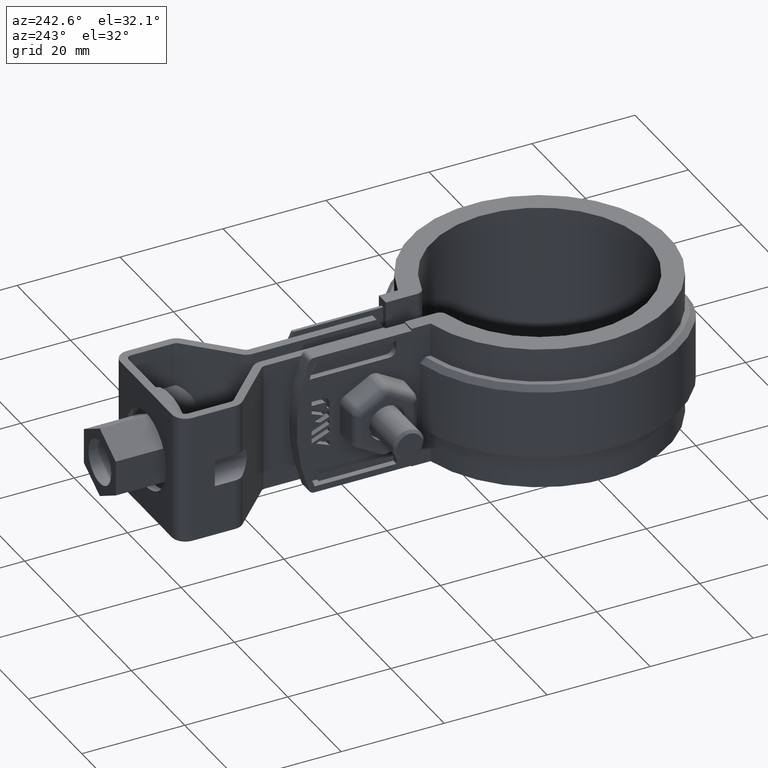
[diagram: clean part render]
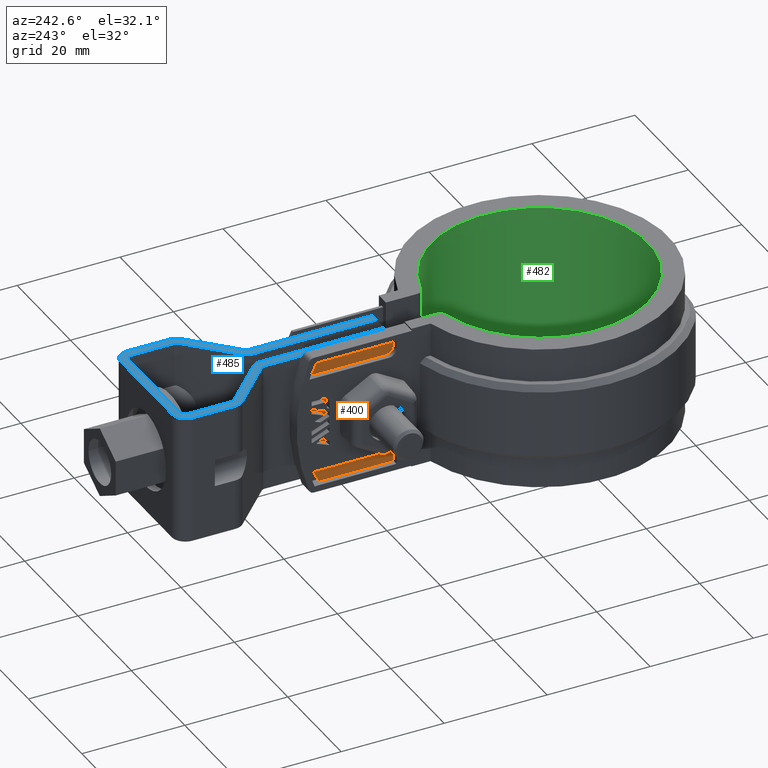
[diagram: same view with three faces highlighted in distinct colors, each labeled with its STEP entity id]
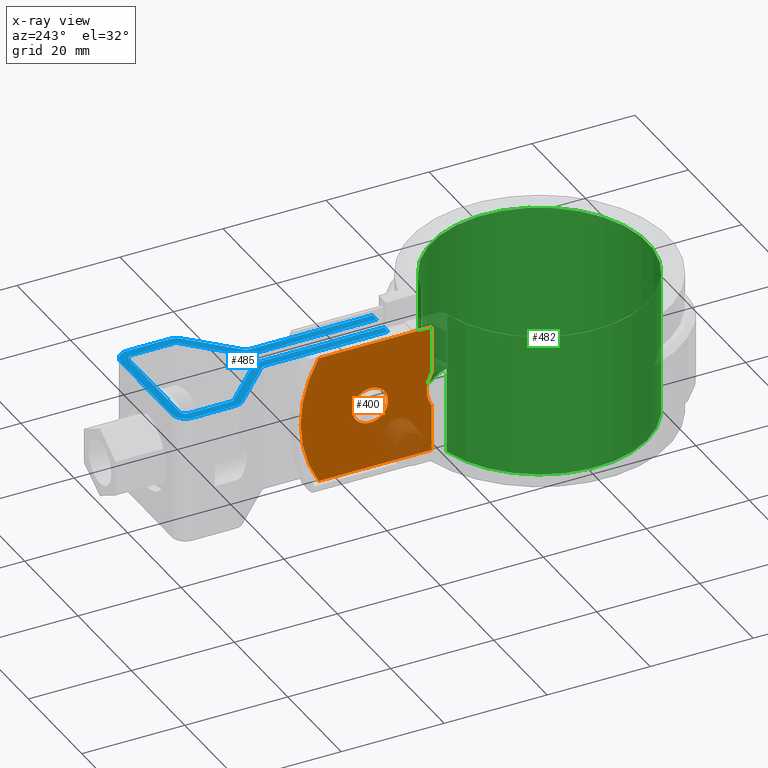
[diagram: x-ray of the same camera — body ghosted, the three highlighted faces saturated]
A machine part, auxiliary view with three faces highlighted in distinct colors.
The next image is the same camera in x-ray (body ghosted, the three faces saturated) — at least one of them is partly hidden behind the body in this view.
Their STEP definitions:

[orange] entity #400 — the highlighted planar face has unit normal (1, -0, 0).
#400 = ADVANCED_FACE( '', ( #774, #775 ), #776, .F. );
#774 = FACE_BOUND( '', #1675, .T. );
#775 = FACE_OUTER_BOUND( '', #1676, .T. );
#776 = PLANE( '', #1677 );
#1675 = EDGE_LOOP( '', ( #3307 ) );
#1676 = EDGE_LOOP( '', ( #3308, #3309, #3310, #3311, #3312, #3313 ) );
#1677 = AXIS2_PLACEMENT_3D( '', #3314, #3315, #3316 );
#3307 = ORIENTED_EDGE( '', *, *, #6246, .F. );
#3308 = ORIENTED_EDGE( '', *, *, #6161, .F. );
#3309 = ORIENTED_EDGE( '', *, *, #6220, .F. );
#3310 = ORIENTED_EDGE( '', *, *, #6135, .F. );
#3311 = ORIENTED_EDGE( '', *, *, #6242, .F. );
#3312 = ORIENTED_EDGE( '', *, *, #6235, .T. );
#3313 = ORIENTED_EDGE( '', *, *, #6249, .F. );
#3314 = CARTESIAN_POINT( '', ( -5.10000000000000, 49.0454076850486, 0.000000000000000 ) );
#3315 = DIRECTION( '', ( 1.00000000000000, -6.12303176911189E-017, 0.000000000000000 ) );
#3316 = DIRECTION( '', ( -6.12303176911189E-017, -1.00000000000000, 0.000000000000000 ) );
#6135 = EDGE_CURVE( '', #7073, #7076, #7077, .T. );
#6161 = EDGE_CURVE( '', #7121, #7123, #7124, .T. );
#6220 = EDGE_CURVE( '', #7076, #7121, #7223, .T. );
#6235 = EDGE_CURVE( '', #7243, #7241, #7244, .T. );
#6242 = EDGE_CURVE( '', #7243, #7073, #7254, .T. );
#6246 = EDGE_CURVE( '', #7259, #7259, #7260, .F. );
#6249 = EDGE_CURVE( '', #7123, #7241, #7264, .T. );
#7073 = VERTEX_POINT( '', #8754 );
#7076 = VERTEX_POINT( '', #8758 );
#7077 = LINE( '', #8759, #8760 );
#7121 = VERTEX_POINT( '', #8976 );
#7123 = VERTEX_POINT( '', #8991 );
#7124 = B_SPLINE_CURVE_WITH_KNOTS( '', 3, ( #8992, #8993, #8994, #8995, #8996, #8997, #8998, #8999, #9000, #9001, #9002, #9003, #9004, #9005, #9006, #9007 ), .UNSPECIFIED., .F., .F., ( 4, 2, 2, 2, 2, 2, 2, 4 ), ( 0.000000000000000, 0.00178226757328872, 0.00267340135993308, 0.00356453514657744, 0.00445566893322180, 0.00534680271986616, 0.00623793650651052, 0.00712907029315488 ), .UNSPECIFIED. );
#7223 = LINE( '', #9581, #9582 );
#7241 = VERTEX_POINT( '', #9630 );
#7243 = VERTEX_POINT( '', #9632 );
#7244 = LINE( '', #9633, #9634 );
#7254 = CIRCLE( '', #9647, 24.0000000000000 );
#7259 = VERTEX_POINT( '', #9653 );
#7260 = CIRCLE( '', #9654, 3.50000000000000 );
#7264 = LINE( '', #9659, #9660 );
#8754 = CARTESIAN_POINT( '', ( -5.10000000000002, 45.5332089335965, 2.11305039765919E-031 ) );
#8758 = CARTESIAN_POINT( '', ( -5.10000000000000, 23.6220236220354, 0.000000000000000 ) );
#8759 = CARTESIAN_POINT( '', ( -5.10000000000000, 49.0454076850486, 0.000000000000000 ) );
#8760 = VECTOR( '', #12465, 1000.00000000000 );
#8976 = CARTESIAN_POINT( '', ( -5.10000000000000, 23.6220236220354, -9.09103393485072 ) );
#8991 = CARTESIAN_POINT( '', ( -5.10000000000000, 23.6220236220354, -15.9089660651493 ) );
#8992 = CARTESIAN_POINT( '', ( -5.10000000000000, 23.6220236220354, -9.09103393485072 ) );
#8993 = CARTESIAN_POINT( '', ( -5.10000000000000, 23.9351079892514, -9.60609027551422 ) );
#8994 = CARTESIAN_POINT( '', ( -5.10000000000000, 24.1701184720438, -10.1520119490988 ) );
#8995 = CARTESIAN_POINT( '', ( -5.10000000000000, 24.4118846740219, -11.0146776130757 ) );
#8996 = CARTESIAN_POINT( '', ( -5.09999999999999, 24.4737099916134, -11.3112838608145 ) );
#8997 = CARTESIAN_POINT( '', ( -5.09999999999999, 24.5554598301932, -11.9025011125937 ) );
#8998 = CARTESIAN_POINT( '', ( -5.09999999999999, 24.5760977391014, -12.1989037411198 ) );
#8999 = CARTESIAN_POINT( '', ( -5.09999999999999, 24.5764569778626, -12.7933143672970 ) );
#9000 = CARTESIAN_POINT( '', ( -5.10000000000000, 24.5560940052507, -13.0918979562416 ) );
#9001 = CARTESIAN_POINT( '', ( -5.10000000000000, 24.4739034540452, -13.6883214232927 ) );
#9002 = CARTESIAN_POINT( '', ( -5.10000000000001, 24.4129522583653, -13.9804437215128 ) );
#9003 = CARTESIAN_POINT( '', ( -5.10000000000001, 24.2530720638696, -14.5530412437133 ) );
#9004 = CARTESIAN_POINT( '', ( -5.09999999999999, 24.1541383949331, -14.8335150354559 ) );
#9005 = CARTESIAN_POINT( '', ( -5.09999999999999, 23.9171957299976, -15.3824789548621 ) );
#9006 = CARTESIAN_POINT( '', ( -5.09999999999999, 23.7785633939905, -15.6514418622374 ) );
#9007 = CARTESIAN_POINT( '', ( -5.09999999999999, 23.6220236220354, -15.9089660651493 ) );
#9581 = CARTESIAN_POINT( '', ( -5.10000000000000, 23.6220236220354, 0.000000000000000 ) );
#9582 = VECTOR( '', #12542, 1000.00000000000 );
#9630 = CARTESIAN_POINT( '', ( -5.10000000000000, 23.6220236220354, -25.0000000000000 ) );
#9632 = CARTESIAN_POINT( '', ( -5.10000000000002, 45.5332089335965, -25.0000000000000 ) );
#9633 = CARTESIAN_POINT( '', ( -5.10000000000000, 49.0454076850486, -25.0000000000000 ) );
#9634 = VECTOR( '', #12564, 1000.00000000000 );
#9647 = AXIS2_PLACEMENT_3D( '', #12577, #12578, #12579 );
#9653 = CARTESIAN_POINT( '', ( -5.10000000000000, 39.0454076850486, -12.5000000000000 ) );
#9654 = AXIS2_PLACEMENT_3D( '', #12587, #12588, #12589 );
#9659 = CARTESIAN_POINT( '', ( -5.10000000000000, 23.6220236220354, 0.000000000000000 ) );
#9660 = VECTOR( '', #12594, 1000.00000000000 );
#12465 = DIRECTION( '', ( -6.12303176911189E-017, -1.00000000000000, 0.000000000000000 ) );
#12542 = DIRECTION( '', ( 0.000000000000000, 0.000000000000000, -1.00000000000000 ) );
#12564 = DIRECTION( '', ( -6.12303176911189E-017, -1.00000000000000, 0.000000000000000 ) );
#12577 = CARTESIAN_POINT( '', ( -5.09999999999999, 25.0454076850486, -12.5000000000000 ) );
#12578 = DIRECTION( '', ( 1.00000000000000, -6.12303176911189E-017, 0.000000000000000 ) );
#12579 = DIRECTION( '', ( 6.12303176911189E-017, 1.00000000000000, 0.000000000000000 ) );
#12587 = CARTESIAN_POINT( '', ( -5.10000000000000, 35.5454076850486, -12.5000000000000 ) );
#12588 = DIRECTION( '', ( 1.00000000000000, -6.12303176911189E-017, 0.000000000000000 ) );
#12589 = DIRECTION( '', ( 6.12303176911189E-017, 1.00000000000000, 0.000000000000000 ) );
#12594 = DIRECTION( '', ( 0.000000000000000, 0.000000000000000, -1.00000000000000 ) );

[blue] entity #485 — the highlighted planar face has unit normal (0, 0, -1).
#485 = ADVANCED_FACE( '', ( #947 ), #948, .F. );
#947 = FACE_OUTER_BOUND( '', #2040, .T. );
#948 = PLANE( '', #2041 );
#2040 = EDGE_LOOP( '', ( #4375, #4376, #4377, #4378, #4379, #4380, #4381, #4382, #4383, #4384, #4385, #4386, #4387, #4388, #4389, #4390, #4391, #4392, #4393, #4394, #4395, #4396, #4397, #4398, #4399, #4400, #4401, #4402 ) );
#2041 = AXIS2_PLACEMENT_3D( '', #4403, #4404, #4405 );
#4375 = ORIENTED_EDGE( '', *, *, #6474, .T. );
#4376 = ORIENTED_EDGE( '', *, *, #6475, .T. );
#4377 = ORIENTED_EDGE( '', *, *, #6476, .F. );
#4378 = ORIENTED_EDGE( '', *, *, #6477, .F. );
#4379 = ORIENTED_EDGE( '', *, *, #6478, .F. );
#4380 = ORIENTED_EDGE( '', *, *, #6479, .F. );
#4381 = ORIENTED_EDGE( '', *, *, #6480, .F. );
#4382 = ORIENTED_EDGE( '', *, *, #6481, .T. );
#4383 = ORIENTED_EDGE( '', *, *, #6482, .T. );
#4384 = ORIENTED_EDGE( '', *, *, #6483, .T. );
#4385 = ORIENTED_EDGE( '', *, *, #6484, .T. );
#4386 = ORIENTED_EDGE( '', *, *, #6485, .F. );
#4387 = ORIENTED_EDGE( '', *, *, #6486, .F. );
#4388 = ORIENTED_EDGE( '', *, *, #6487, .T. );
#4389 = ORIENTED_EDGE( '', *, *, #6488, .F. );
#4390 = ORIENTED_EDGE( '', *, *, #6489, .F. );
#4391 = ORIENTED_EDGE( '', *, *, #6490, .T. );
#4392 = ORIENTED_EDGE( '', *, *, #6491, .T. );
#4393 = ORIENTED_EDGE( '', *, *, #6492, .T. );
#4394 = ORIENTED_EDGE( '', *, *, #6493, .T. );
#4395 = ORIENTED_EDGE( '', *, *, #6494, .F. );
#4396 = ORIENTED_EDGE( '', *, *, #6495, .F. );
#4397 = ORIENTED_EDGE( '', *, *, #6496, .F. );
#4398 = ORIENTED_EDGE( '', *, *, #6497, .F. );
#4399 = ORIENTED_EDGE( '', *, *, #6498, .F. );
#4400 = ORIENTED_EDGE( '', *, *, #6499, .T. );
#4401 = ORIENTED_EDGE( '', *, *, #6500, .T. );
#4402 = ORIENTED_EDGE( '', *, *, #6501, .F. );
#4403 = CARTESIAN_POINT( '', ( -9.64999999999965, 73.8025110200027, -2.44387843295613E-011 ) );
#4404 = DIRECTION( '', ( 5.79906149265214E-015, 1.26121335597421E-013, -1.00000000000000 ) );
#4405 = DIRECTION( '', ( -9.21184560650170E-016, 1.00000000000000, 1.26121335597421E-013 ) );
#6474 = EDGE_CURVE( '', #7633, #7634, #7635, .T. );
#6475 = EDGE_CURVE( '', #7634, #7636, #7637, .F. );
#6476 = EDGE_CURVE( '', #7638, #7636, #7639, .T. );
#6477 = EDGE_CURVE( '', #7640, #7638, #7641, .T. );
#6478 = EDGE_CURVE( '', #7642, #7640, #7643, .T. );
#6479 = EDGE_CURVE( '', #7644, #7642, #7645, .T. );
#6480 = EDGE_CURVE( '', #7646, #7644, #7647, .T. );
#6481 = EDGE_CURVE( '', #7646, #7648, #7649, .T. );
#6482 = EDGE_CURVE( '', #7648, #7650, #7651, .T. );
#6483 = EDGE_CURVE( '', #7650, #7652, #7653, .T. );
#6484 = EDGE_CURVE( '', #7652, #7654, #7655, .T. );
#6485 = EDGE_CURVE( '', #7656, #7654, #7657, .F. );
#6486 = EDGE_CURVE( '', #7658, #7656, #7659, .T. );
#6487 = EDGE_CURVE( '', #7658, #7660, #7661, .F. );
#6488 = EDGE_CURVE( '', #7662, #7660, #7663, .T. );
#6489 = EDGE_CURVE( '', #7664, #7662, #7665, .T. );
#6490 = EDGE_CURVE( '', #7664, #7666, #7667, .T. );
#6491 = EDGE_CURVE( '', #7666, #7668, #7669, .T. );
#6492 = EDGE_CURVE( '', #7668, #7670, #7671, .T. );
#6493 = EDGE_CURVE( '', #7670, #7672, #7673, .T. );
#6494 = EDGE_CURVE( '', #7674, #7672, #7675, .T. );
#6495 = EDGE_CURVE( '', #7676, #7674, #7677, .T. );
#6496 = EDGE_CURVE( '', #7678, #7676, #7679, .T. );
#6497 = EDGE_CURVE( '', #7680, #7678, #7681, .T. );
#6498 = EDGE_CURVE( '', #7682, #7680, #7683, .T. );
#6499 = EDGE_CURVE( '', #7682, #7684, #7685, .T. );
#6500 = EDGE_CURVE( '', #7684, #7686, #7687, .T. );
#6501 = EDGE_CURVE( '', #7633, #7686, #7688, .F. );
#7633 = VERTEX_POINT( '', #10973 );
#7634 = VERTEX_POINT( '', #10974 );
#7635 = LINE( '', #10975, #10976 );
#7636 = VERTEX_POINT( '', #10977 );
#7637 = CIRCLE( '', #10978, 2.60000000000000 );
#7638 = VERTEX_POINT( '', #10979 );
#7639 = LINE( '', #10980, #10981 );
#7640 = VERTEX_POINT( '', #10982 );
#7641 = CIRCLE( '', #10983, 1.00000000000000 );
#7642 = VERTEX_POINT( '', #10984 );
#7643 = LINE( '', #10985, #10986 );
#7644 = VERTEX_POINT( '', #10987 );
#7645 = CIRCLE( '', #10988, 1.00000000000000 );
#7646 = VERTEX_POINT( '', #10989 );
#7647 = LINE( '', #10990, #10991 );
#7648 = VERTEX_POINT( '', #10992 );
#7649 = CIRCLE( '', #10993, 1.00000000000000 );
#7650 = VERTEX_POINT( '', #10994 );
#7651 = LINE( '', #10995, #10996 );
#7652 = VERTEX_POINT( '', #10997 );
#7653 = CIRCLE( '', #10998, 0.999999999999999 );
#7654 = VERTEX_POINT( '', #10999 );
#7655 = LINE( '', #11000, #11001 );
#7656 = VERTEX_POINT( '', #11002 );
#7657 = CIRCLE( '', #11003, 2.59999999999999 );
#7658 = VERTEX_POINT( '', #11004 );
#7659 = LINE( '', #11005, #11006 );
#7660 = VERTEX_POINT( '', #11007 );
#7661 = LINE( '', #11008, #11009 );
#7662 = VERTEX_POINT( '', #11010 );
#7663 = LINE( '', #11011, #11012 );
#7664 = VERTEX_POINT( '', #11013 );
#7665 = CIRCLE( '', #11014, 0.999999999999998 );
#7666 = VERTEX_POINT( '', #11015 );
#7667 = LINE( '', #11016, #11017 );
#7668 = VERTEX_POINT( '', #11018 );
#7669 = CIRCLE( '', #11019, 2.59999999999999 );
#7670 = VERTEX_POINT( '', #11020 );
#7671 = LINE( '', #11021, #11022 );
#7672 = VERTEX_POINT( '', #11023 );
#7673 = CIRCLE( '', #11024, 2.59999999999999 );
#7674 = VERTEX_POINT( '', #11025 );
#7675 = LINE( '', #11026, #11027 );
#7676 = VERTEX_POINT( '', #11028 );
#7677 = CIRCLE( '', #11029, 2.59999999999999 );
#7678 = VERTEX_POINT( '', #11030 );
#7679 = LINE( '', #11031, #11032 );
#7680 = VERTEX_POINT( '', #11033 );
#7681 = CIRCLE( '', #11034, 2.59999999999999 );
#7682 = VERTEX_POINT( '', #11035 );
#7683 = LINE( '', #11036, #11037 );
#7684 = VERTEX_POINT( '', #11038 );
#7685 = CIRCLE( '', #11039, 1.00000000000000 );
#7686 = VERTEX_POINT( '', #11040 );
#7687 = LINE( '', #11041, #11042 );
#7688 = LINE( '', #11043, #11044 );
#10973 = CARTESIAN_POINT( '', ( -1.39999999999960, 30.9025110530909, -2.98233659989933E-011 ) );
#10974 = CARTESIAN_POINT( '', ( -1.39999999999963, 54.9566573942989, -2.67841304690819E-011 ) );
#10975 = CARTESIAN_POINT( '', ( -1.39999999999960, 26.4025110200029, -3.03923552991137E-011 ) );
#10976 = VECTOR( '', #12875, 1000.00000000000 );
#10977 = CARTESIAN_POINT( '', ( -2.18435802762033, 56.8176905020471, -2.65482080763491E-011 ) );
#10978 = AXIS2_PLACEMENT_3D( '', #12876, #12877, #12878 );
#10979 = CARTESIAN_POINT( '', ( -10.3483238355301, 64.7825348243743, -2.55906407176099E-011 ) );
#10980 = CARTESIAN_POINT( '', ( -10.3483238355301, 64.7825348243743, -2.55906407176099E-011 ) );
#10981 = VECTOR( '', #12879, 1000.00000000000 );
#10982 = CARTESIAN_POINT( '', ( -10.6499999999996, 65.4983167888927, -2.54934962029552E-011 ) );
#10983 = AXIS2_PLACEMENT_3D( '', #12880, #12881, #12882 );
#10984 = CARTESIAN_POINT( '', ( -10.6499999999996, 73.8025110200027, -2.44526621173691E-011 ) );
#10985 = CARTESIAN_POINT( '', ( -10.6499999999996, 73.8025110200027, -2.44526621173691E-011 ) );
#10986 = VECTOR( '', #12883, 1000.00000000000 );
#10987 = CARTESIAN_POINT( '', ( -9.64999999999965, 74.8025110200027, -2.43138842392909E-011 ) );
#10988 = AXIS2_PLACEMENT_3D( '', #12884, #12885, #12886 );
#10989 = CARTESIAN_POINT( '', ( 9.65000000000034, 74.8025110200030, -2.41751063612128E-011 ) );
#10990 = CARTESIAN_POINT( '', ( 9.65000000000036, 74.8025110200027, -2.42028619368284E-011 ) );
#10991 = VECTOR( '', #12887, 1000.00000000000 );
#10992 = CARTESIAN_POINT( '', ( 10.6500000000003, 73.8025110200030, -2.43000064514831E-011 ) );
#10993 = AXIS2_PLACEMENT_3D( '', #12888, #12889, #12890 );
#10994 = CARTESIAN_POINT( '', ( 10.6500000000003, 65.4983167888931, -2.53408405370692E-011 ) );
#10995 = CARTESIAN_POINT( '', ( 10.6500000000003, 73.8025110200030, -2.43000064514831E-011 ) );
#10996 = VECTOR( '', #12891, 1000.00000000000 );
#10997 = CARTESIAN_POINT( '', ( 10.3483238355309, 64.7825348243746, -2.54379850517239E-011 ) );
#10998 = AXIS2_PLACEMENT_3D( '', #12892, #12893, #12894 );
#10999 = CARTESIAN_POINT( '', ( 2.18435802762107, 56.8176905020473, -2.64926969251178E-011 ) );
#11000 = CARTESIAN_POINT( '', ( 10.3483238355309, 64.7825348243746, -2.54379850517239E-011 ) );
#11001 = VECTOR( '', #12895, 1000.00000000000 );
#11002 = CARTESIAN_POINT( '', ( 1.40000000000037, 54.9566573942992, -2.67424971056585E-011 ) );
#11003 = AXIS2_PLACEMENT_3D( '', #12896, #12897, #12898 );
#11004 = CARTESIAN_POINT( '', ( 1.40000000000039, 30.9025110530911, -2.97817326355698E-011 ) );
#11005 = CARTESIAN_POINT( '', ( 1.40000000000039, 26.4025110200031, -3.03368441478824E-011 ) );
#11006 = VECTOR( '', #12899, 1000.00000000000 );
#11007 = CARTESIAN_POINT( '', ( 3.00000000000041, 30.9025110579827, 5.88354365227417E-009 ) );
#11008 = CARTESIAN_POINT( '', ( 38.4737108565962, 30.9025110530912, -2.95596880306448E-011 ) );
#11009 = VECTOR( '', #12900, 999.999999999998 );
#11010 = CARTESIAN_POINT( '', ( 3.00000000000036, 54.9566574245233, -2.67286193178506E-011 ) );
#11011 = CARTESIAN_POINT( '', ( 3.00000000000036, 55.3781211934134, -2.66731081666194E-011 ) );
#11012 = VECTOR( '', #12901, 1000.00000000000 );
#11013 = CARTESIAN_POINT( '', ( 3.30167616446986, 55.6724393890418, -2.66314748031959E-011 ) );
#11014 = AXIS2_PLACEMENT_3D( '', #12902, #12903, #12904 );
#11015 = CARTESIAN_POINT( '', ( 11.4656419723796, 63.6372837113691, -2.55767629298020E-011 ) );
#11016 = CARTESIAN_POINT( '', ( 3.90167616446986, 56.2578052156314, -2.65482080763491E-011 ) );
#11017 = VECTOR( '', #12905, 1000.00000000000 );
#11018 = CARTESIAN_POINT( '', ( 12.2500000000003, 65.4983168191172, -2.53408405370692E-011 ) );
#11019 = AXIS2_PLACEMENT_3D( '', #12906, #12907, #12908 );
#11020 = CARTESIAN_POINT( '', ( 12.2500000000003, 73.8025110200030, -2.42861286636753E-011 ) );
#11021 = CARTESIAN_POINT( '', ( 12.2500000000003, 65.4983168191172, -2.53408405370692E-011 ) );
#11022 = VECTOR( '', #12909, 1000.00000000000 );
#11023 = CARTESIAN_POINT( '', ( 9.65000000000034, 76.4025110200030, -2.39808173319034E-011 ) );
#11024 = AXIS2_PLACEMENT_3D( '', #12910, #12911, #12912 );
#11025 = CARTESIAN_POINT( '', ( -9.64999999999965, 76.4025110200027, -2.41195952099815E-011 ) );
#11026 = CARTESIAN_POINT( '', ( -9.64999999999965, 76.4025110200027, -2.41195952099815E-011 ) );
#11027 = VECTOR( '', #12913, 1000.00000000000 );
#11028 = CARTESIAN_POINT( '', ( -12.2499999999996, 73.8025110200027, -2.44526621173691E-011 ) );
#11029 = AXIS2_PLACEMENT_3D( '', #12914, #12915, #12916 );
#11030 = CARTESIAN_POINT( '', ( -12.2499999999996, 65.4983168191169, -2.55073739907630E-011 ) );
#11031 = CARTESIAN_POINT( '', ( -12.2499999999996, 65.4983168191169, -2.55073739907630E-011 ) );
#11032 = VECTOR( '', #12917, 1000.00000000000 );
#11033 = CARTESIAN_POINT( '', ( -11.4656419723789, 63.6372837113687, -2.57294185956880E-011 ) );
#11034 = AXIS2_PLACEMENT_3D( '', #12918, #12919, #12920 );
#11035 = CARTESIAN_POINT( '', ( -3.30167616446912, 55.6724393890415, -2.66869859544272E-011 ) );
#11036 = CARTESIAN_POINT( '', ( -3.90167616446913, 56.2578052156311, -2.66175970153881E-011 ) );
#11037 = VECTOR( '', #12921, 1000.00000000000 );
#11038 = CARTESIAN_POINT( '', ( -2.99999999999962, 54.9566574245230, -2.67980082568897E-011 ) );
#11039 = AXIS2_PLACEMENT_3D( '', #12922, #12923, #12924 );
#11040 = CARTESIAN_POINT( '', ( -2.99999999999963, 30.9025110579824, 5.88348814112294E-009 ) );
#11041 = CARTESIAN_POINT( '', ( -2.99999999999962, 55.3781211934131, -2.67424971056585E-011 ) );
#11042 = VECTOR( '', #12925, 1000.00000000000 );
#11043 = CARTESIAN_POINT( '', ( -38.4737108565955, 30.9025110530908, -3.00315328161105E-011 ) );
#11044 = VECTOR( '', #12926, 1000.00000000000 );
#12875 = DIRECTION( '', ( -1.03220686311269E-015, 1.00000000000000, 1.26121335597421E-013 ) );
#12876 = CARTESIAN_POINT( '', ( -3.99999999999962, 54.9566573942989, -2.67841304690819E-011 ) );
#12877 = DIRECTION( '', ( 5.79906149265214E-015, 1.26121335597421E-013, -1.00000000000000 ) );
#12878 = DIRECTION( '', ( -1.00000000000000, -9.21184560649439E-016, -5.79906149265226E-015 ) );
#12879 = DIRECTION( '', ( 0.715781964518506, -0.698323835530500, -8.39226711890465E-014 ) );
#12880 = CARTESIAN_POINT( '', ( -9.64999999999964, 65.4983167888927, -2.54934962029552E-011 ) );
#12881 = DIRECTION( '', ( -5.79906149265214E-015, -1.26121335597421E-013, 1.00000000000000 ) );
#12882 = DIRECTION( '', ( -1.00000000000000, -9.21184560649439E-016, -5.79906149265226E-015 ) );
#12883 = DIRECTION( '', ( 9.21184560650170E-016, -1.00000000000000, -1.26121335597421E-013 ) );
#12884 = CARTESIAN_POINT( '', ( -9.64999999999965, 73.8025110200027, -2.44387843295613E-011 ) );
#12885 = DIRECTION( '', ( -5.79906149265214E-015, -1.26121335597421E-013, 1.00000000000000 ) );
#12886 = DIRECTION( '', ( -9.21184560650170E-016, 1.00000000000000, 1.26121335597421E-013 ) );
#12887 = DIRECTION( '', ( -1.00000000000000, -9.21184560649439E-016, -5.79906149265226E-015 ) );
#12888 = CARTESIAN_POINT( '', ( 9.65000000000034, 73.8025110200030, -2.43000064514831E-011 ) );
#12889 = DIRECTION( '', ( 5.79906149265214E-015, 1.26121335597421E-013, -1.00000000000000 ) );
#12890 = DIRECTION( '', ( -7.98723925267933E-016, 1.00000000000000, 1.26121335597421E-013 ) );
#12891 = DIRECTION( '', ( 7.98723925267933E-016, -1.00000000000000, -1.26121335597421E-013 ) );
#12892 = CARTESIAN_POINT( '', ( 9.65000000000035, 65.4983167888931, -2.53547183248770E-011 ) );
#12893 = DIRECTION( '', ( 5.79906149265214E-015, 1.26121335597421E-013, -1.00000000000000 ) );
#12894 = DIRECTION( '', ( 1.00000000000000, 7.98723925267201E-016, 5.79906149265224E-015 ) );
#12895 = DIRECTION( '', ( -0.715781964518503, -0.698323835530503, -9.22243984441952E-014 ) );
#12896 = CARTESIAN_POINT( '', ( 4.00000000000036, 54.9566573942992, -2.67147415300428E-011 ) );
#12897 = DIRECTION( '', ( -5.79906149265214E-015, -1.26121335597421E-013, 1.00000000000000 ) );
#12898 = DIRECTION( '', ( 1.00000000000000, 7.98723925267201E-016, 5.79906149265224E-015 ) );
#12899 = DIRECTION( '', ( -6.87701622805418E-016, 1.00000000000000, 1.26121335597421E-013 ) );
#12900 = DIRECTION( '', ( -1.00000000000000, -7.98723925267201E-016, -5.79906149265224E-015 ) );
#12901 = DIRECTION( '', ( 6.87701622805418E-016, -1.00000000000000, -1.26121335597421E-013 ) );
#12902 = CARTESIAN_POINT( '', ( 4.00000000000036, 54.9566574245233, -2.67147415300428E-011 ) );
#12903 = DIRECTION( '', ( -5.79906149265214E-015, -1.26121335597421E-013, 1.00000000000000 ) );
#12904 = DIRECTION( '', ( 1.00000000000000, 7.98723925267201E-016, 5.79906149265224E-015 ) );
#12905 = DIRECTION( '', ( 0.715781964518503, 0.698323835530503, 9.22243984441952E-014 ) );
#12906 = CARTESIAN_POINT( '', ( 9.65000000000035, 65.4983168191172, -2.53547183248770E-011 ) );
#12907 = DIRECTION( '', ( -5.79906149265214E-015, -1.26121335597421E-013, 1.00000000000000 ) );
#12908 = DIRECTION( '', ( 0.698323835530501, -0.715781964518505, -8.62257544975938E-014 ) );
#12909 = DIRECTION( '', ( -7.98723925267933E-016, 1.00000000000000, 1.26121335597421E-013 ) );
#12910 = CARTESIAN_POINT( '', ( 9.65000000000034, 73.8025110200030, -2.43000064514831E-011 ) );
#12911 = DIRECTION( '', ( -5.79906149265214E-015, -1.26121335597421E-013, 1.00000000000000 ) );
#12912 = DIRECTION( '', ( 1.00000000000000, 7.98723925267201E-016, 5.79906149265224E-015 ) );
#12913 = DIRECTION( '', ( 1.00000000000000, 9.21184560649439E-016, 5.79906149265226E-015 ) );
#12914 = CARTESIAN_POINT( '', ( -9.64999999999965, 73.8025110200027, -2.44387843295613E-011 ) );
#12915 = DIRECTION( '', ( 5.79906149265214E-015, 1.26121335597421E-013, -1.00000000000000 ) );
#12916 = DIRECTION( '', ( -1.00000000000000, -9.21184560649439E-016, -5.79906149265226E-015 ) );
#12917 = DIRECTION( '', ( -9.21184560650170E-016, 1.00000000000000, 1.26121335597421E-013 ) );
#12918 = CARTESIAN_POINT( '', ( -9.64999999999964, 65.4983168191169, -2.54934962029552E-011 ) );
#12919 = DIRECTION( '', ( 5.79906149265215E-015, 1.26121335597421E-013, -1.00000000000000 ) );
#12920 = DIRECTION( '', ( -0.698323835530501, -0.715781964518505, -9.43250002256460E-014 ) );
#12921 = DIRECTION( '', ( -0.715781964518506, 0.698323835530500, 8.39226711890465E-014 ) );
#12922 = CARTESIAN_POINT( '', ( -3.99999999999962, 54.9566574245230, -2.67841304690819E-011 ) );
#12923 = DIRECTION( '', ( 5.79906149265214E-015, 1.26121335597421E-013, -1.00000000000000 ) );
#12924 = DIRECTION( '', ( -1.00000000000000, -9.21184560649439E-016, -5.79906149265226E-015 ) );
#12925 = DIRECTION( '', ( 1.03220686311269E-015, -1.00000000000000, -1.26121335597421E-013 ) );
#12926 = DIRECTION( '', ( 1.00000000000000, 9.21184560649439E-016, 5.79906149265226E-015 ) );

[green] entity #482 — the highlighted cylindrical surface (partial cylindrical patch) has radius 21 mm, axis along (0, 0, -1).
#482 = ADVANCED_FACE( '', ( #941 ), #942, .F. );
#941 = FACE_OUTER_BOUND( '', #2034, .T. );
#942 = CYLINDRICAL_SURFACE( '', #2035, 21.0000000000000 );
#2034 = EDGE_LOOP( '', ( #4354, #4355, #4356, #4357 ) );
#2035 = AXIS2_PLACEMENT_3D( '', #4358, #4359, #4360 );
#4354 = ORIENTED_EDGE( '', *, *, #6428, .F. );
#4355 = ORIENTED_EDGE( '', *, *, #6442, .T. );
#4356 = ORIENTED_EDGE( '', *, *, #6433, .T. );
#4357 = ORIENTED_EDGE( '', *, *, #6473, .T. );
#4358 = CARTESIAN_POINT( '', ( 0.000000000000000, 0.000000000000000, -86.8105458761267 ) );
#4359 = DIRECTION( '', ( 0.000000000000000, 0.000000000000000, -1.00000000000000 ) );
#4360 = DIRECTION( '', ( -1.00000000000000, 0.000000000000000, 0.000000000000000 ) );
#6428 = EDGE_CURVE( '', #7571, #7573, #7574, .F. );
#6433 = EDGE_CURVE( '', #7580, #7578, #7581, .F. );
#6442 = EDGE_CURVE( '', #7571, #7580, #7593, .T. );
#6473 = EDGE_CURVE( '', #7578, #7573, #7632, .F. );
#7571 = VERTEX_POINT( '', #10857 );
#7573 = VERTEX_POINT( '', #10859 );
#7574 = CIRCLE( '', #10860, 21.0000000000000 );
#7578 = VERTEX_POINT( '', #10866 );
#7580 = VERTEX_POINT( '', #10868 );
#7581 = CIRCLE( '', #10869, 21.0000000000000 );
#7593 = LINE( '', #10886, #10887 );
#7632 = LINE( '', #10971, #10972 );
#10857 = CARTESIAN_POINT( '', ( -4.66666666666667, 20.4749169039149, -26.5000000000000 ) );
#10859 = CARTESIAN_POINT( '', ( 4.66666666666667, 20.4749169039149, -26.5000000000000 ) );
#10860 = AXIS2_PLACEMENT_3D( '', #12806, #12807, #12808 );
#10866 = CARTESIAN_POINT( '', ( 4.66666666666667, 20.4749169039149, 1.50000000000000 ) );
#10868 = CARTESIAN_POINT( '', ( -4.66666666666667, 20.4749169039149, 1.50000000000000 ) );
#10869 = AXIS2_PLACEMENT_3D( '', #12817, #12818, #12819 );
#10886 = CARTESIAN_POINT( '', ( -4.66666666666667, 20.4749169039149, -86.8105458761267 ) );
#10887 = VECTOR( '', #12834, 1000.00000000000 );
#10971 = CARTESIAN_POINT( '', ( 4.66666666666667, 20.4749169039149, -86.8105458761267 ) );
#10972 = VECTOR( '', #12874, 1000.00000000000 );
#12806 = CARTESIAN_POINT( '', ( 0.000000000000000, 0.000000000000000, -26.5000000000000 ) );
#12807 = DIRECTION( '', ( 0.000000000000000, 0.000000000000000, -1.00000000000000 ) );
#12808 = DIRECTION( '', ( -1.00000000000000, 0.000000000000000, 0.000000000000000 ) );
#12817 = CARTESIAN_POINT( '', ( 0.000000000000000, 0.000000000000000, 1.50000000000000 ) );
#12818 = DIRECTION( '', ( 0.000000000000000, 0.000000000000000, -1.00000000000000 ) );
#12819 = DIRECTION( '', ( -1.00000000000000, 0.000000000000000, 0.000000000000000 ) );
#12834 = DIRECTION( '', ( 0.000000000000000, 0.000000000000000, 1.00000000000000 ) );
#12874 = DIRECTION( '', ( 0.000000000000000, 0.000000000000000, 1.00000000000000 ) );